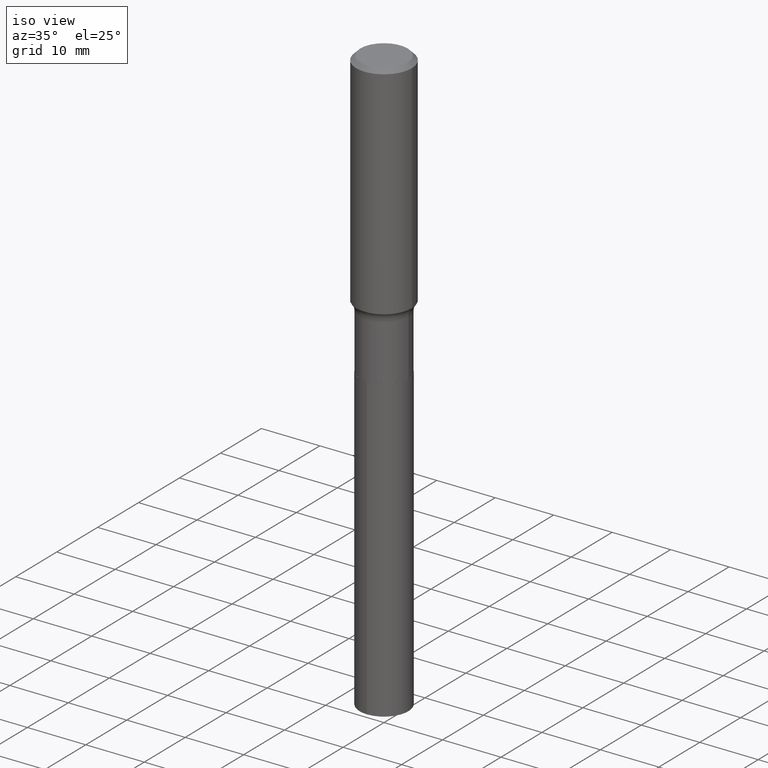
[diagram: clean part render]
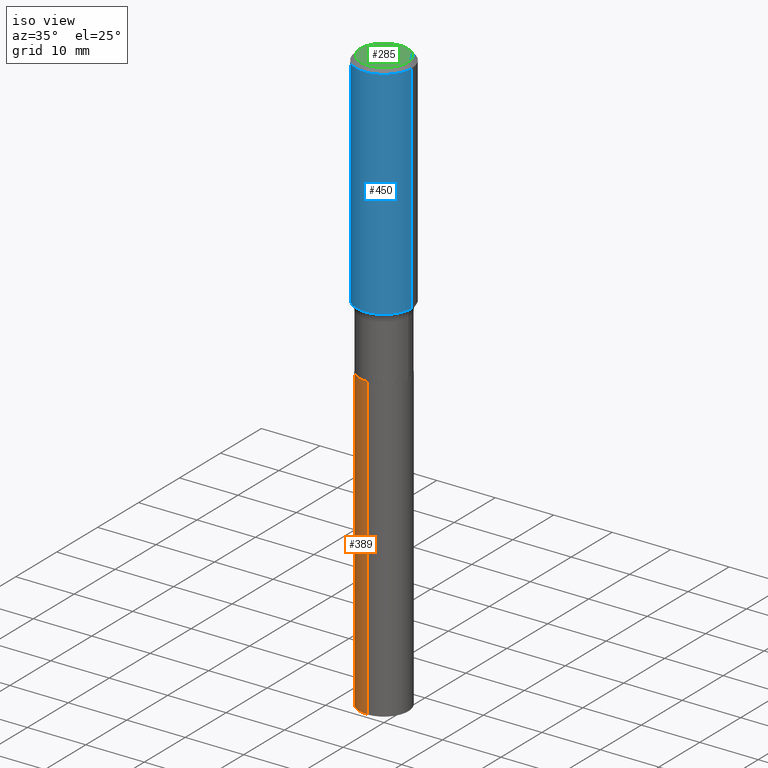
[diagram: same view with three faces highlighted in distinct colors, each labeled with its STEP entity id]
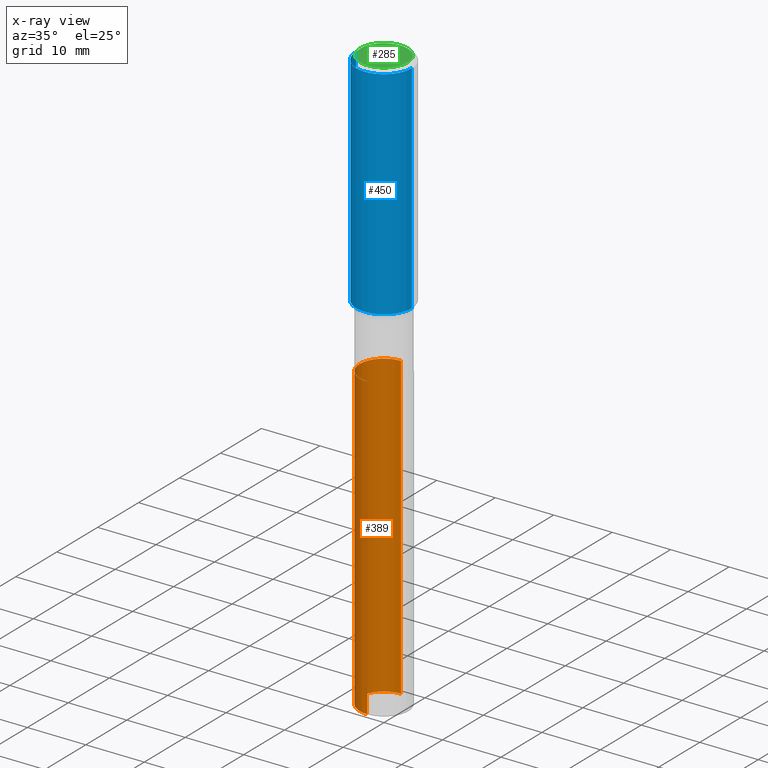
[diagram: x-ray of the same camera — body ghosted, the three highlighted faces saturated]
A machine part, iso view with three faces highlighted in distinct colors.
The next image is the same camera in x-ray (body ghosted, the three faces saturated) — at least one of them is partly hidden behind the body in this view.
Their STEP definitions:

[orange] entity #389 — the highlighted cylindrical surface (edge-blend (fillet) strip) has radius 4.1669 mm, axis along (-0, 0, 1).
#13 = CIRCLE ( 'NONE', #237, 0.1640500000000000014 ) ;
#15 = AXIS2_PLACEMENT_3D ( 'NONE', #317, #91, #217 ) ;
#20 = VERTEX_POINT ( 'NONE', #302 ) ;
#43 = CARTESIAN_POINT ( 'NONE',  ( 9.655759671398943871E-29, -1.378479120479867509E-14, -3.948275233684402696 ) ) ;
#45 = EDGE_CURVE ( 'NONE', #291, #20, #372, .T. ) ;
#87 = DIRECTION ( 'NONE',  ( -2.445654235410760242E-29, 3.491215793638075751E-15, 1.000000000000000000 ) ) ;
#90 = ORIENTED_EDGE ( 'NONE', *, *, #134, .T. ) ;
#91 = DIRECTION ( 'NONE',  ( -2.445654235410760522E-29, 3.491215793638075751E-15, 1.000000000000000000 ) ) ;
#93 = CARTESIAN_POINT ( 'NONE',  ( -1.145555027274384725E-15, -0.1640500000000067182, -1.921899999999999276 ) ) ;
#95 = ORIENTED_EDGE ( 'NONE', *, *, #159, .T. ) ;
#112 = VECTOR ( 'NONE', #416, 39.37007874015748143 ) ;
#114 = ORIENTED_EDGE ( 'NONE', *, *, #45, .F. ) ;
#134 = EDGE_CURVE ( 'NONE', #291, #468, #186, .T. ) ;
#136 = FACE_OUTER_BOUND ( 'NONE', #365, .T. ) ;
#159 = EDGE_CURVE ( 'NONE', #468, #363, #430, .T. ) ;
#186 = CIRCLE ( 'NONE', #452, 0.1640500000000000014 ) ;
#214 = DIRECTION ( 'NONE',  ( -2.445654235410760522E-29, 3.491215793638075751E-15, 1.000000000000000000 ) ) ;
#217 = DIRECTION ( 'NONE',  ( -6.982962677686265133E-15, -1.000000000000000000, 3.330506545156066257E-15 ) ) ;
#237 = AXIS2_PLACEMENT_3D ( 'NONE', #390, #214, #472 ) ;
#245 = DIRECTION ( 'NONE',  ( -2.445654235410760522E-29, 3.491215793638075751E-15, 1.000000000000000000 ) ) ;
#268 = CARTESIAN_POINT ( 'NONE',  ( 1.165645358014491105E-15, 0.1640499999999932568, -1.921900000000000386 ) ) ;
#291 = VERTEX_POINT ( 'NONE', #454 ) ;
#302 = CARTESIAN_POINT ( 'NONE',  ( 1.165645358014540803E-15, 0.1640499999999932568, -1.921900000000000386 ) ) ;
#317 = CARTESIAN_POINT ( 'NONE',  ( 4.699946498607213813E-29, -6.710277985122640475E-15, -1.921899999999999720 ) ) ;
#357 = EDGE_CURVE ( 'NONE', #20, #363, #13, .T. ) ;
#359 = CYLINDRICAL_SURFACE ( 'NONE', #15, 0.1640500000000000014 ) ;
#363 = VERTEX_POINT ( 'NONE', #93 ) ;
#365 = EDGE_LOOP ( 'NONE', ( #114, #90, #95, #391 ) ) ;
#372 = LINE ( 'NONE', #268, #112 ) ;
#387 = DIRECTION ( 'NONE',  ( -6.982962677686265133E-15, -1.000000000000000000, 3.330506545156066257E-15 ) ) ;
#389 = ADVANCED_FACE ( 'NONE', ( #136 ), #359, .T. ) ;
#390 = CARTESIAN_POINT ( 'NONE',  ( 4.699946498607213813E-29, -6.710277985122640475E-15, -1.921899999999999720 ) ) ;
#391 = ORIENTED_EDGE ( 'NONE', *, *, #357, .F. ) ;
#416 = DIRECTION ( 'NONE',  ( -2.445654235410760242E-29, 3.491215793638075751E-15, 1.000000000000000000 ) ) ;
#424 = CARTESIAN_POINT ( 'NONE',  ( -1.145555027274384725E-15, -0.1640500000000067182, -1.921899999999999276 ) ) ;
#430 = LINE ( 'NONE', #424, #436 ) ;
#436 = VECTOR ( 'NONE', #87, 39.37007874015748143 ) ;
#452 = AXIS2_PLACEMENT_3D ( 'NONE', #43, #245, #387 ) ;
#454 = CARTESIAN_POINT ( 'NONE',  ( 1.165645358014540803E-15, 0.1640499999999862346, -3.948275233684403585 ) ) ;
#468 = VERTEX_POINT ( 'NONE', #476 ) ;
#472 = DIRECTION ( 'NONE',  ( -6.982962677686265133E-15, -1.000000000000000000, 3.330506545156066257E-15 ) ) ;
#476 = CARTESIAN_POINT ( 'NONE',  ( -1.145555027274335422E-15, -0.1640500000000138237, -3.948275233684402252 ) ) ;

[blue] entity #450 — the highlighted cylindrical surface (edge-blend (fillet) strip) has radius 4.7625 mm, axis along (-0, 0, 1).
#4 = CARTESIAN_POINT ( 'NONE',  ( 0.1875000000000001943, -6.507590134814400434E-15, -1.488847892416519159 ) ) ;
#6 = CARTESIAN_POINT ( 'NONE',  ( 0.1875000000000001110, -1.309305502066175797E-15, 9.142831454617385217E-30 ) ) ;
#19 = CYLINDRICAL_SURFACE ( 'NONE', #478, 0.1875000000000001110 ) ;
#22 = ORIENTED_EDGE ( 'NONE', *, *, #434, .F. ) ;
#48 = DIRECTION ( 'NONE',  ( -2.445468806185136877E-29, 3.491481338843145188E-15, 1.000000000000000000 ) ) ;
#54 = DIRECTION ( 'NONE',  ( 1.000000000000000000, -6.982962677686264344E-15, 0.000000000000000000 ) ) ;
#63 = VECTOR ( 'NONE', #344, 39.37007874015748143 ) ;
#66 = VERTEX_POINT ( 'NONE', #340 ) ;
#82 = CIRCLE ( 'NONE', #227, 0.1875000000000000278 ) ;
#86 = CARTESIAN_POINT ( 'NONE',  ( -0.1875000000000001110, 1.332267629550188637E-15, -9.223003294227953596E-30 ) ) ;
#122 = CARTESIAN_POINT ( 'NONE',  ( 0.1875000000000000278, -1.407503414721139120E-15, -0.02812500000000018804 ) ) ;
#131 = DIRECTION ( 'NONE',  ( -2.445468806185136597E-29, 3.491481338843145583E-15, 1.000000000000000000 ) ) ;
#173 = CARTESIAN_POINT ( 'NONE',  ( 0.000000000000000000, 0.000000000000000000, 0.000000000000000000 ) ) ;
#179 = EDGE_LOOP ( 'NONE', ( #254, #395, #409, #22 ) ) ;
#194 = VECTOR ( 'NONE', #48, 39.37007874015748143 ) ;
#203 = LINE ( 'NONE', #6, #194 ) ;
#211 = VERTEX_POINT ( 'NONE', #122 ) ;
#227 = AXIS2_PLACEMENT_3D ( 'NONE', #250, #394, #54 ) ;
#238 = CARTESIAN_POINT ( 'NONE',  ( -0.1875000000000001943, -3.866017003198034421E-15, -1.488847892416519159 ) ) ;
#246 = DIRECTION ( 'NONE',  ( 1.000000000000000000, -6.982962677686265922E-15, 0.000000000000000000 ) ) ;
#249 = EDGE_CURVE ( 'NONE', #320, #282, #280, .T. ) ;
#250 = CARTESIAN_POINT ( 'NONE',  ( 6.877881017395742746E-31, -9.819791265496411169E-17, -0.02812500000000018804 ) ) ;
#254 = ORIENTED_EDGE ( 'NONE', *, *, #271, .F. ) ;
#271 = EDGE_CURVE ( 'NONE', #320, #66, #275, .T. ) ;
#275 = LINE ( 'NONE', #86, #63 ) ;
#278 = CARTESIAN_POINT ( 'NONE',  ( 3.640931078059081513E-29, -5.198284632748223059E-15, -1.488847892416519159 ) ) ;
#280 = CIRCLE ( 'NONE', #413, 0.1875000000000001943 ) ;
#282 = VERTEX_POINT ( 'NONE', #4 ) ;
#288 = DIRECTION ( 'NONE',  ( 1.000000000000000000, -6.982962677686266711E-15, 4.876176775795935793E-29 ) ) ;
#299 = EDGE_CURVE ( 'NONE', #282, #211, #203, .T. ) ;
#320 = VERTEX_POINT ( 'NONE', #238 ) ;
#340 = CARTESIAN_POINT ( 'NONE',  ( -0.1875000000000000278, -1.315973643151404751E-15, -0.02812500000000018804 ) ) ;
#344 = DIRECTION ( 'NONE',  ( -2.445468806185136877E-29, 3.491481338843145188E-15, 1.000000000000000000 ) ) ;
#394 = DIRECTION ( 'NONE',  ( -2.445468806185136597E-29, 3.491481338843145583E-15, 1.000000000000000000 ) ) ;
#395 = ORIENTED_EDGE ( 'NONE', *, *, #249, .T. ) ;
#409 = ORIENTED_EDGE ( 'NONE', *, *, #299, .T. ) ;
#413 = AXIS2_PLACEMENT_3D ( 'NONE', #278, #461, #246 ) ;
#434 = EDGE_CURVE ( 'NONE', #66, #211, #82, .T. ) ;
#450 = ADVANCED_FACE ( 'NONE', ( #469 ), #19, .T. ) ;
#461 = DIRECTION ( 'NONE',  ( -2.445468806185136597E-29, 3.491481338843145583E-15, 1.000000000000000000 ) ) ;
#469 = FACE_OUTER_BOUND ( 'NONE', #179, .T. ) ;
#478 = AXIS2_PLACEMENT_3D ( 'NONE', #173, #131, #288 ) ;

[green] entity #285 — the highlighted planar face has unit normal (0, -0, -1).
#24 = VERTEX_POINT ( 'NONE', #40 ) ;
#40 = CARTESIAN_POINT ( 'NONE',  ( -0.1593749999999999889, 1.162008633083729827E-15, 3.252968060227205293E-18 ) ) ;
#89 = PLANE ( 'NONE',  #260 ) ;
#125 = FACE_OUTER_BOUND ( 'NONE', #303, .T. ) ;
#140 = DIRECTION ( 'NONE',  ( -2.445468806185136597E-29, 3.491481338843145583E-15, 1.000000000000000000 ) ) ;
#162 = AXIS2_PLACEMENT_3D ( 'NONE', #348, #458, #198 ) ;
#198 = DIRECTION ( 'NONE',  ( 1.000000000000000000, -6.982962677686267499E-15, 4.876227444496879000E-29 ) ) ;
#213 = EDGE_CURVE ( 'NONE', #24, #446, #370, .T. ) ;
#243 = DIRECTION ( 'NONE',  ( -1.000000000000000000, 6.982962677686265922E-15, -4.876176775795935793E-29 ) ) ;
#260 = AXIS2_PLACEMENT_3D ( 'NONE', #388, #276, #243 ) ;
#276 = DIRECTION ( 'NONE',  ( 2.438088387897960049E-29, -3.491481338843145188E-15, -1.000000000000000000 ) ) ;
#285 = ADVANCED_FACE ( 'NONE', ( #125 ), #89, .F. ) ;
#292 = DIRECTION ( 'NONE',  ( 1.000000000000000000, -6.982962677686267499E-15, 4.876227444496879000E-29 ) ) ;
#303 = EDGE_LOOP ( 'NONE', ( #473, #369 ) ) ;
#348 = CARTESIAN_POINT ( 'NONE',  ( -7.955031918821655674E-47, 1.135767727816384611E-32, 3.252968060235159768E-18 ) ) ;
#355 = CARTESIAN_POINT ( 'NONE',  ( 0.1593749999999999889, -1.238966577815982298E-15, 3.252968060243383104E-18 ) ) ;
#369 = ORIENTED_EDGE ( 'NONE', *, *, #414, .T. ) ;
#370 = CIRCLE ( 'NONE', #162, 0.1593749999999999889 ) ;
#388 = CARTESIAN_POINT ( 'NONE',  ( -3.977515959410827837E-47, 5.678838639081923055E-33, 1.626484030117579884E-18 ) ) ;
#411 = CIRCLE ( 'NONE', #420, 0.1593749999999999889 ) ;
#414 = EDGE_CURVE ( 'NONE', #446, #24, #411, .T. ) ;
#420 = AXIS2_PLACEMENT_3D ( 'NONE', #474, #140, #292 ) ;
#446 = VERTEX_POINT ( 'NONE', #355 ) ;
#458 = DIRECTION ( 'NONE',  ( -2.445468806185136597E-29, 3.491481338843145583E-15, 1.000000000000000000 ) ) ;
#473 = ORIENTED_EDGE ( 'NONE', *, *, #213, .T. ) ;
#474 = CARTESIAN_POINT ( 'NONE',  ( -7.955031918821655674E-47, 1.135767727816384611E-32, 3.252968060235159768E-18 ) ) ;